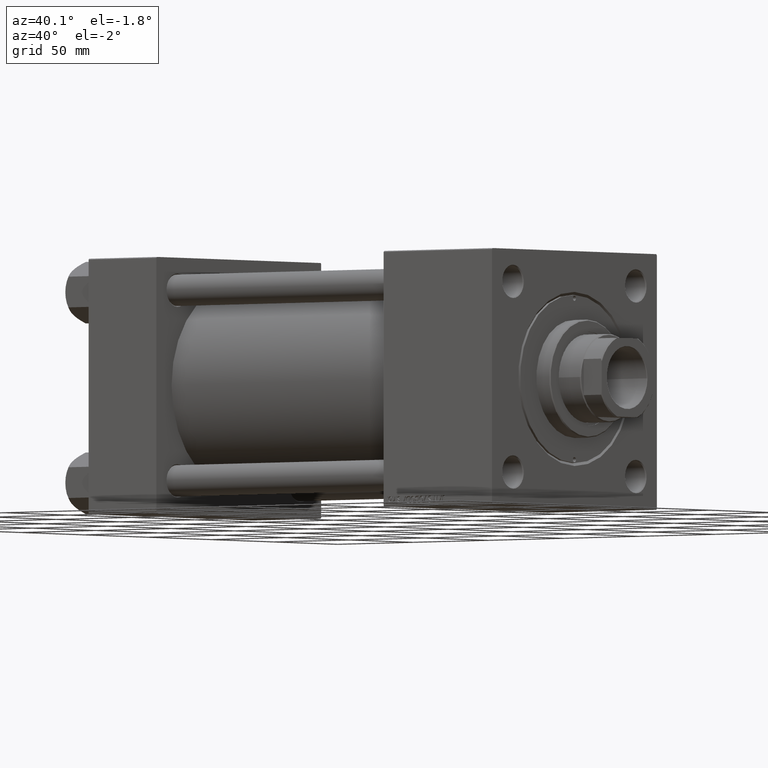
[diagram: clean part render]
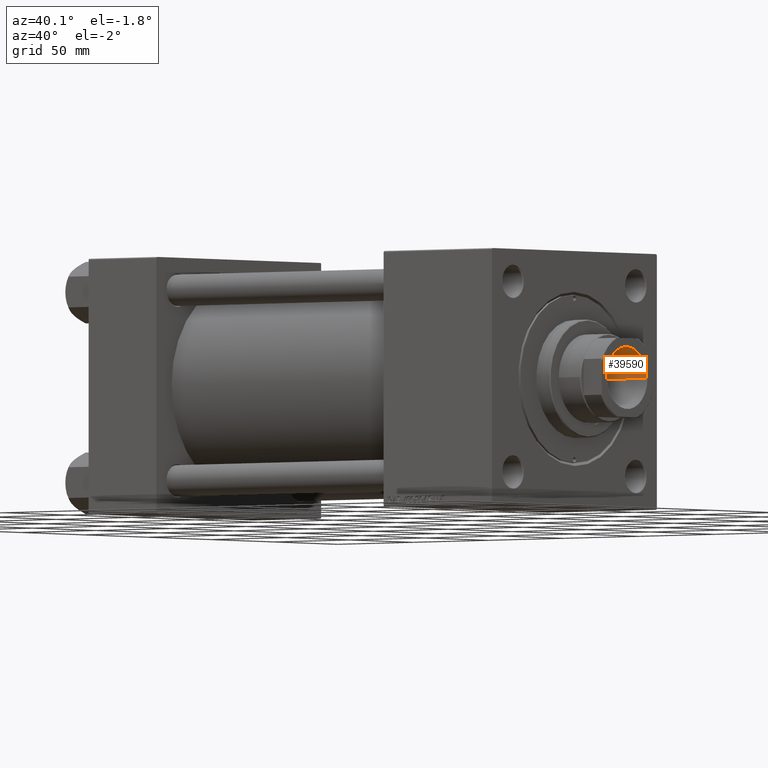
[diagram: same view with one face highlighted and labeled with its STEP entity id]
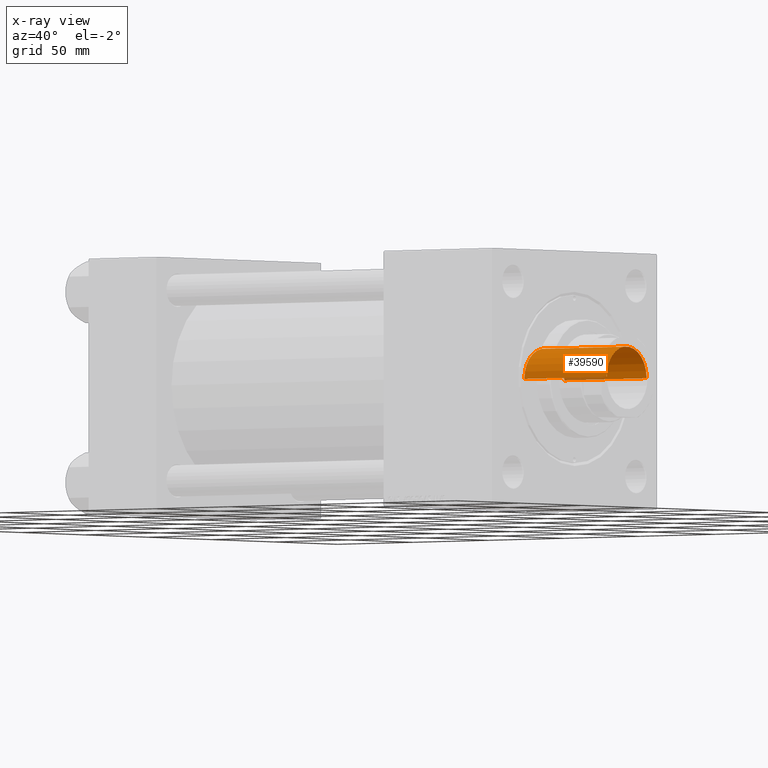
[diagram: x-ray of the same camera — body ghosted, the highlighted face saturated]
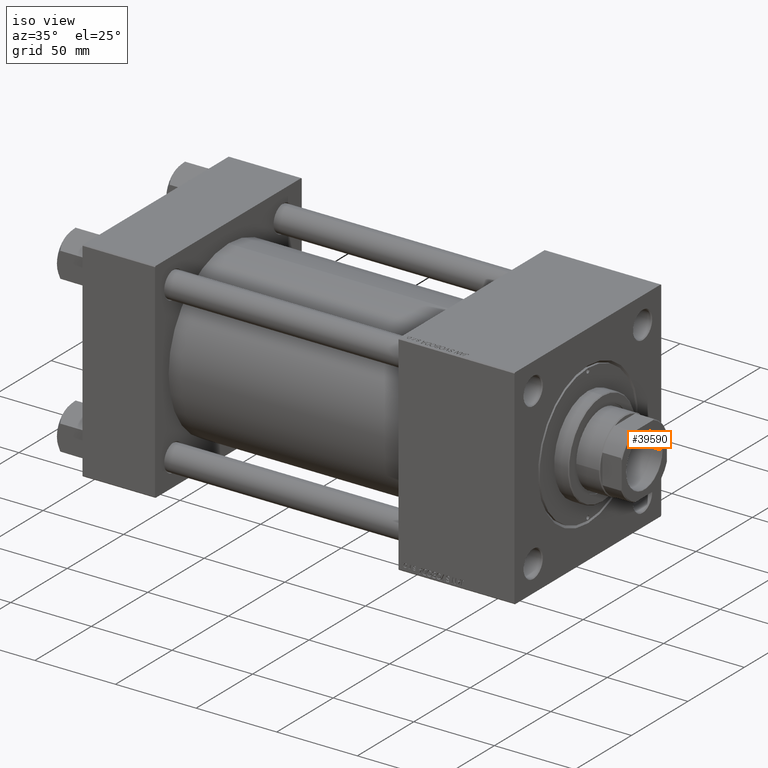
[diagram: same view with one face highlighted and labeled with its STEP entity id]
A machine part, auxiliary view. The second image highlights one B-rep face of the part: STEP entity #39590.
The next image is the same camera in x-ray: the body ghosted, the highlighted face saturated — about 3% of this face is hidden behind the body in this view.
A second angle (iso view) of the same face is appended — the face is thin or edge-on in the first view.
In plain terms, the highlighted cylindrical surface (edge-blend (fillet) strip) has radius 15.75 mm, axis along (1, 0, 0).
Its self-contained STEP definition (entity closure, byte-faithful):
#271 = VECTOR ( 'NONE', #31712, 1000.000000000000000 ) ;
#367 = CARTESIAN_POINT ( 'NONE',  ( 15.74999999999999289, 0.000000000000000000, 258.0000000000000000 ) ) ;
#595 = ORIENTED_EDGE ( 'NONE', *, *, #26336, .T. ) ;
#3789 = EDGE_CURVE ( 'NONE', #31578, #41130, #30050, .T. ) ;
#4435 = ORIENTED_EDGE ( 'NONE', *, *, #3789, .F. ) ;
#5152 = DIRECTION ( 'NONE',  ( 0.000000000000000000, 0.000000000000000000, 1.000000000000000000 ) ) ;
#7139 = DIRECTION ( 'NONE',  ( -0.000000000000000000, -0.000000000000000000, 1.000000000000000000 ) ) ;
#7307 = VECTOR ( 'NONE', #49203, 1000.000000000000000 ) ;
#7895 = CARTESIAN_POINT ( 'NONE',  ( 0.000000000000000000, 0.000000000000000000, 258.0000000000000000 ) ) ;
#10114 = CARTESIAN_POINT ( 'NONE',  ( -15.74999999999998934, 1.928818708657080161E-15, 203.0000000000000000 ) ) ;
#13322 = VERTEX_POINT ( 'NONE', #28547 ) ;
#16964 = CARTESIAN_POINT ( 'NONE',  ( 0.000000000000000000, 0.000000000000000000, 257.6999999999999886 ) ) ;
#17157 = ORIENTED_EDGE ( 'NONE', *, *, #33549, .T. ) ;
#17249 = CARTESIAN_POINT ( 'NONE',  ( 15.74999999999998934, 0.000000000000000000, 203.0000000000000000 ) ) ;
#17465 = DIRECTION ( 'NONE',  ( 1.000000000000000000, 0.000000000000000000, 0.000000000000000000 ) ) ;
#17849 = LINE ( 'NONE', #33528, #7307 ) ;
#17887 = AXIS2_PLACEMENT_3D ( 'NONE', #16964, #5152, #17465 ) ;
#20336 = CIRCLE ( 'NONE', #17887, 15.74999999999999289 ) ;
#20861 = DIRECTION ( 'NONE',  ( 1.000000000000000000, 0.000000000000000000, 0.000000000000000000 ) ) ;
#23775 = CARTESIAN_POINT ( 'NONE',  ( 15.74999999999999289, 0.000000000000000000, 257.6999999999999886 ) ) ;
#23900 = AXIS2_PLACEMENT_3D ( 'NONE', #7895, #7139, #38755 ) ;
#24704 = CARTESIAN_POINT ( 'NONE',  ( 0.000000000000000000, 0.000000000000000000, 203.0000000000000000 ) ) ;
#25562 = ORIENTED_EDGE ( 'NONE', *, *, #45431, .F. ) ;
#26336 = EDGE_CURVE ( 'NONE', #13322, #50468, #20336, .T. ) ;
#28095 = LINE ( 'NONE', #367, #271 ) ;
#28327 = DIRECTION ( 'NONE',  ( -0.000000000000000000, -0.000000000000000000, 1.000000000000000000 ) ) ;
#28547 = CARTESIAN_POINT ( 'NONE',  ( -15.74999999999999289, 1.928818708657080556E-15, 257.6999999999999886 ) ) ;
#30050 = CIRCLE ( 'NONE', #34955, 15.74999999999998934 ) ;
#31041 = CYLINDRICAL_SURFACE ( 'NONE', #23900, 15.74999999999999289 ) ;
#31578 = VERTEX_POINT ( 'NONE', #10114 ) ;
#31712 = DIRECTION ( 'NONE',  ( -0.000000000000000000, -0.000000000000000000, 1.000000000000000000 ) ) ;
#33232 = EDGE_LOOP ( 'NONE', ( #4435, #17157, #595, #25562 ) ) ;
#33528 = CARTESIAN_POINT ( 'NONE',  ( -15.74999999999999289, 1.928818708657080556E-15, 258.0000000000000000 ) ) ;
#33549 = EDGE_CURVE ( 'NONE', #31578, #13322, #17849, .T. ) ;
#34630 = FACE_OUTER_BOUND ( 'NONE', #33232, .T. ) ;
#34955 = AXIS2_PLACEMENT_3D ( 'NONE', #24704, #28327, #20861 ) ;
#38755 = DIRECTION ( 'NONE',  ( 1.000000000000000000, 0.000000000000000000, 0.000000000000000000 ) ) ;
#39590 = ADVANCED_FACE ( 'NONE', ( #34630 ), #31041, .F. ) ;
#41130 = VERTEX_POINT ( 'NONE', #17249 ) ;
#45431 = EDGE_CURVE ( 'NONE', #41130, #50468, #28095, .T. ) ;
#49203 = DIRECTION ( 'NONE',  ( -0.000000000000000000, -0.000000000000000000, 1.000000000000000000 ) ) ;
#50468 = VERTEX_POINT ( 'NONE', #23775 ) ;